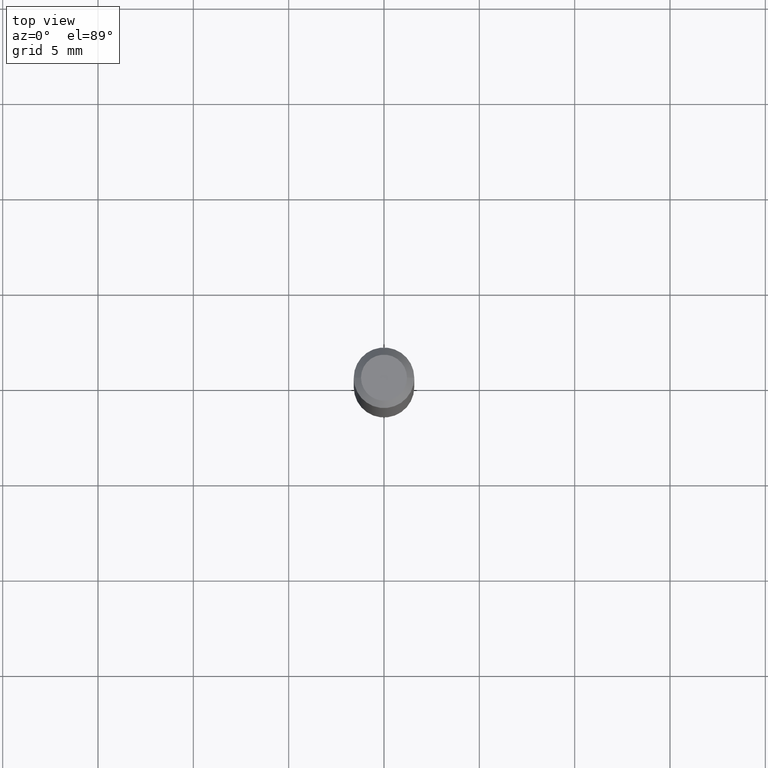
[diagram: clean part render]
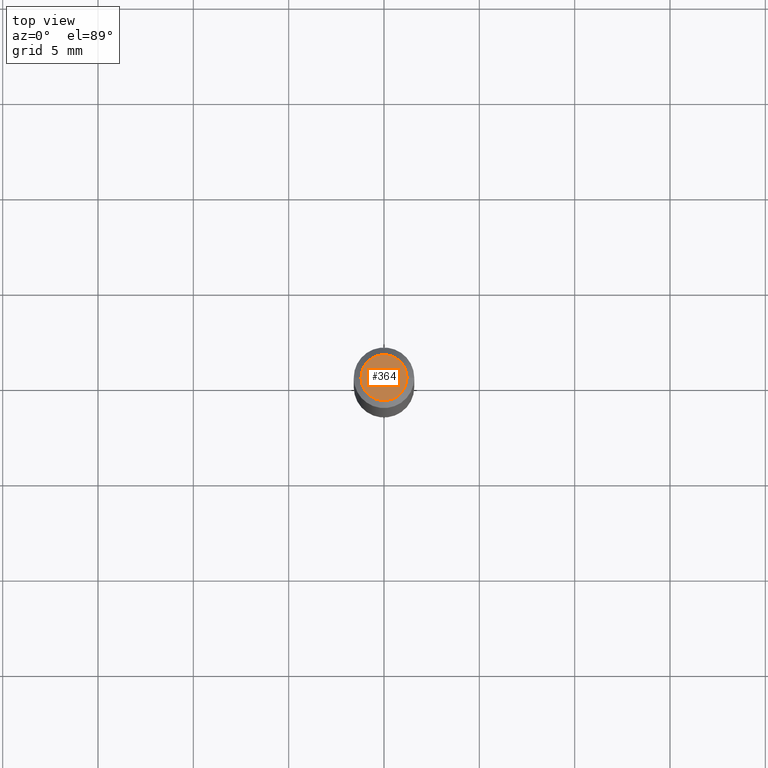
[diagram: same view with one face highlighted and labeled with its STEP entity id]
A machine part, top view. The second image highlights one B-rep face of the part: STEP entity #364.
In plain terms, the highlighted planar face has unit normal (0, -0, -1).
Its self-contained STEP definition (entity closure, byte-faithful):
#9 = VERTEX_POINT ( 'NONE', #287 ) ;
#18 = ORIENTED_EDGE ( 'NONE', *, *, #122, .T. ) ;
#24 = CARTESIAN_POINT ( 'NONE',  ( 3.316907271900976096E-16, 0.04749999999999999362, 9.606345999275825217E-17 ) ) ;
#36 = AXIS2_PLACEMENT_3D ( 'NONE', #24, #60, #275 ) ;
#60 = DIRECTION ( 'NONE',  ( 2.438088387897960049E-29, -3.491481338843145188E-15, -1.000000000000000000 ) ) ;
#82 = EDGE_CURVE ( 'NONE', #9, #454, #366, .T. ) ;
#96 = AXIS2_PLACEMENT_3D ( 'NONE', #176, #461, #137 ) ;
#109 = DIRECTION ( 'NONE',  ( 1.000000000000000000, -6.982962677686267499E-15, 4.852736867747366768E-29 ) ) ;
#122 = EDGE_CURVE ( 'NONE', #454, #9, #298, .T. ) ;
#133 = EDGE_LOOP ( 'NONE', ( #18, #349 ) ) ;
#137 = DIRECTION ( 'NONE',  ( 1.000000000000000000, -6.982962677686267499E-15, 4.852736867747366768E-29 ) ) ;
#171 = AXIS2_PLACEMENT_3D ( 'NONE', #259, #354, #109 ) ;
#176 = CARTESIAN_POINT ( 'NONE',  ( -1.280979716297259006E-44, 1.828899540070383801E-30, 5.238176471756152972E-16 ) ) ;
#209 = FACE_OUTER_BOUND ( 'NONE', #133, .T. ) ;
#259 = CARTESIAN_POINT ( 'NONE',  ( -1.280979716297259006E-44, 1.828899540070383801E-30, 5.238176471756152972E-16 ) ) ;
#275 = DIRECTION ( 'NONE',  ( -1.000000000000000000, 6.982962677686265922E-15, -4.876176775795935793E-29 ) ) ;
#287 = CARTESIAN_POINT ( 'NONE',  ( 0.04749999999999999362, -4.035134999187569255E-16, 5.238176471756178610E-16 ) ) ;
#298 = CIRCLE ( 'NONE', #96, 0.04749999999999999362 ) ;
#305 = CARTESIAN_POINT ( 'NONE',  ( -0.04749999999999999362, 3.578768372314219874E-16, 5.238176471756128320E-16 ) ) ;
#349 = ORIENTED_EDGE ( 'NONE', *, *, #82, .T. ) ;
#354 = DIRECTION ( 'NONE',  ( -2.445468806185136597E-29, 3.491481338843145583E-15, 1.000000000000000000 ) ) ;
#364 = ADVANCED_FACE ( 'NONE', ( #209 ), #385, .F. ) ;
#366 = CIRCLE ( 'NONE', #171, 0.04749999999999999362 ) ;
#385 = PLANE ( 'NONE',  #36 ) ;
#454 = VERTEX_POINT ( 'NONE', #305 ) ;
#461 = DIRECTION ( 'NONE',  ( -2.445468806185136597E-29, 3.491481338843145583E-15, 1.000000000000000000 ) ) ;